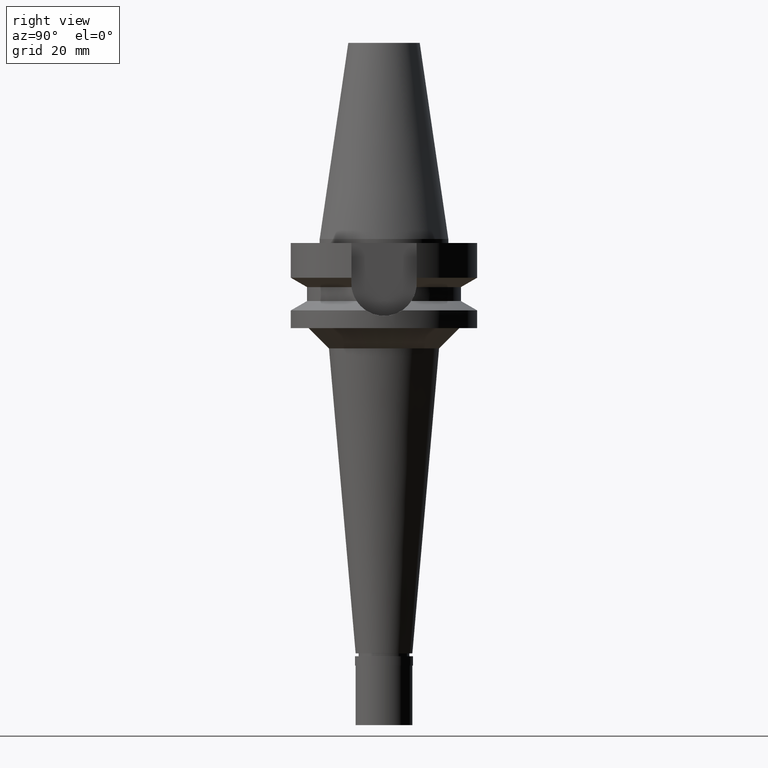
[diagram: clean part render]
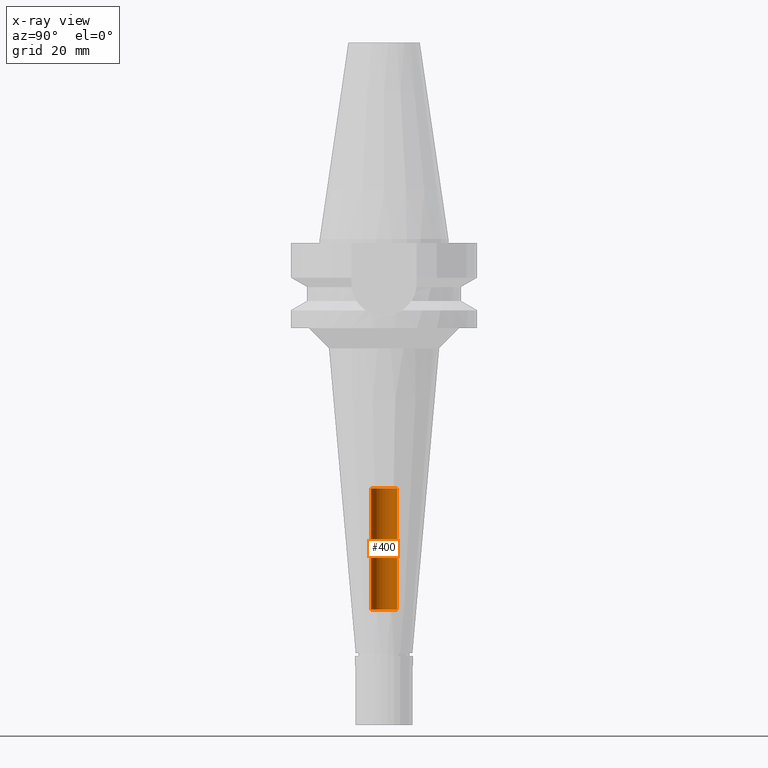
[diagram: x-ray — body ghosted, one internal face saturated and labeled with its STEP entity id]
A machine part, right view, then the same camera in x-ray: the body is ghosted and one INTERNAL B-rep face — a face not visible from any outside direction — is saturated and labeled: STEP entity #400.
In plain terms, the highlighted cylindrical surface (edge-blend (fillet) strip) has radius 3.2 mm, axis along (0, 0, -1).
Its self-contained STEP definition (entity closure, byte-faithful):
#168 = VECTOR ( 'NONE', #450, 1000.000000000000000 ) ;
#234 = DIRECTION ( 'NONE',  ( 0.0000000000000000000, 0.0000000000000000000, -1.000000000000000000 ) ) ;
#302 = CARTESIAN_POINT ( 'NONE',  ( 0.0000000000000000000, 1.918041816824999936E-14, -91.50000000000000000 ) ) ;
#320 = DIRECTION ( 'NONE',  ( 0.0000000000000000000, 0.0000000000000000000, -1.000000000000000000 ) ) ;
#334 = CARTESIAN_POINT ( 'NONE',  ( 0.0000000000000000000, -3.200000000000000178, -61.60000000000000142 ) ) ;
#400 = ADVANCED_FACE ( 'NONE', ( #1205 ), #693, .F. ) ;
#450 = DIRECTION ( 'NONE',  ( 0.0000000000000000000, 0.0000000000000000000, 1.000000000000000000 ) ) ;
#539 = DIRECTION ( 'NONE',  ( 0.0000000000000000000, 0.0000000000000000000, 1.000000000000000000 ) ) ;
#693 = CYLINDRICAL_SURFACE ( 'NONE', #1268, 3.200000000000000178 ) ;
#721 = VERTEX_POINT ( 'NONE', #894 ) ;
#763 = AXIS2_PLACEMENT_3D ( 'NONE', #980, #539, #2783 ) ;
#774 = ORIENTED_EDGE ( 'NONE', *, *, #2373, .T. ) ;
#846 = LINE ( 'NONE', #1513, #2619 ) ;
#894 = CARTESIAN_POINT ( 'NONE',  ( 0.0000000000000000000, 3.200000000000000178, -91.50000000000000000 ) ) ;
#980 = CARTESIAN_POINT ( 'NONE',  ( 0.0000000000000000000, 1.918041816824999936E-14, -61.60000000000000142 ) ) ;
#1019 = VERTEX_POINT ( 'NONE', #2711 ) ;
#1030 = AXIS2_PLACEMENT_3D ( 'NONE', #302, #320, #1226 ) ;
#1205 = FACE_OUTER_BOUND ( 'NONE', #2870, .T. ) ;
#1226 = DIRECTION ( 'NONE',  ( 0.0000000000000000000, -1.000000000000000000, 0.0000000000000000000 ) ) ;
#1268 = AXIS2_PLACEMENT_3D ( 'NONE', #1593, #234, #1392 ) ;
#1300 = VERTEX_POINT ( 'NONE', #1422 ) ;
#1336 = EDGE_CURVE ( 'NONE', #1300, #721, #2852, .T. ) ;
#1392 = DIRECTION ( 'NONE',  ( 0.0000000000000000000, -1.000000000000000000, 0.0000000000000000000 ) ) ;
#1422 = CARTESIAN_POINT ( 'NONE',  ( 0.0000000000000000000, -3.200000000000000178, -91.50000000000000000 ) ) ;
#1497 = ORIENTED_EDGE ( 'NONE', *, *, #2501, .F. ) ;
#1513 = CARTESIAN_POINT ( 'NONE',  ( 0.0000000000000000000, -3.200000000000000178, -91.50000000000000000 ) ) ;
#1593 = CARTESIAN_POINT ( 'NONE',  ( 0.0000000000000000000, 1.918041816824999936E-14, 56.61999999999999744 ) ) ;
#1618 = CARTESIAN_POINT ( 'NONE',  ( 0.0000000000000000000, 3.200000000000000178, -91.50000000000000000 ) ) ;
#1801 = VERTEX_POINT ( 'NONE', #334 ) ;
#1866 = LINE ( 'NONE', #1618, #168 ) ;
#2196 = CIRCLE ( 'NONE', #763, 3.200000000000000178 ) ;
#2262 = ORIENTED_EDGE ( 'NONE', *, *, #2665, .T. ) ;
#2373 = EDGE_CURVE ( 'NONE', #1019, #1801, #2196, .T. ) ;
#2501 = EDGE_CURVE ( 'NONE', #1300, #1801, #846, .T. ) ;
#2619 = VECTOR ( 'NONE', #2669, 1000.000000000000000 ) ;
#2665 = EDGE_CURVE ( 'NONE', #721, #1019, #1866, .T. ) ;
#2669 = DIRECTION ( 'NONE',  ( 0.0000000000000000000, 0.0000000000000000000, 1.000000000000000000 ) ) ;
#2711 = CARTESIAN_POINT ( 'NONE',  ( 0.0000000000000000000, 3.200000000000000178, -61.60000000000000142 ) ) ;
#2783 = DIRECTION ( 'NONE',  ( 0.0000000000000000000, 1.000000000000000000, 0.0000000000000000000 ) ) ;
#2852 = CIRCLE ( 'NONE', #1030, 3.200000000000000178 ) ;
#2870 = EDGE_LOOP ( 'NONE', ( #774, #1497, #2926, #2262 ) ) ;
#2926 = ORIENTED_EDGE ( 'NONE', *, *, #1336, .T. ) ;